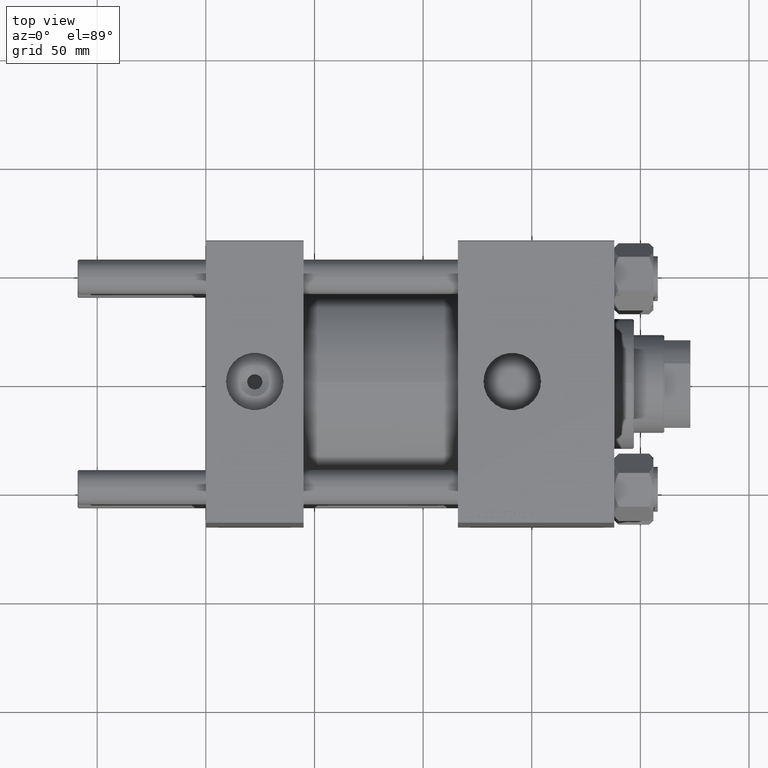
[diagram: clean part render]
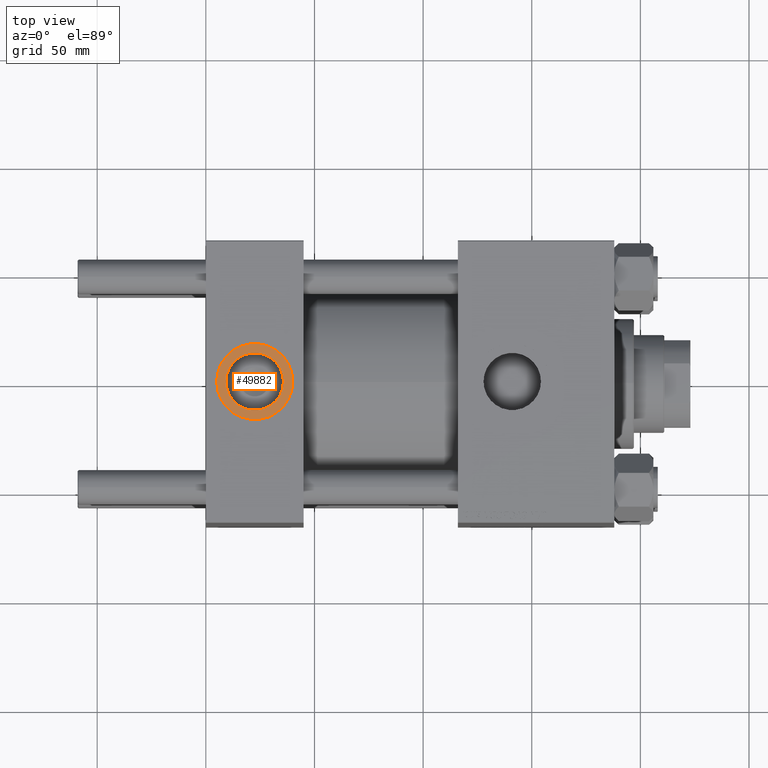
[diagram: same view with one face highlighted and labeled with its STEP entity id]
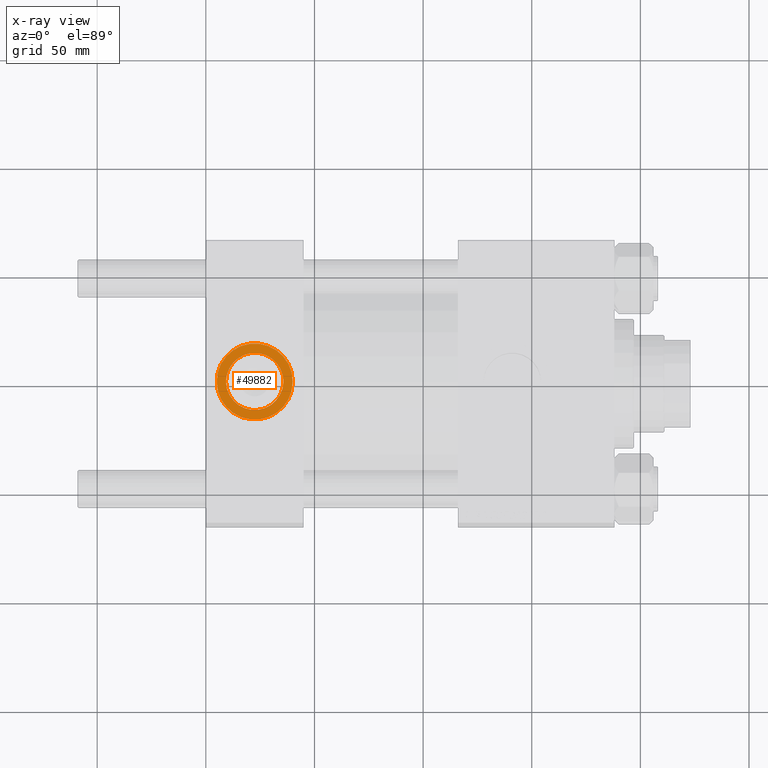
[diagram: x-ray of the same camera — body ghosted, the highlighted face saturated]
A machine part, top view. The second image highlights one B-rep face of the part: STEP entity #49882.
The next image is the same camera in x-ray: the body ghosted, the highlighted face saturated — about 0% of this face is hidden behind the body in this view.
In plain terms, the highlighted planar face has unit normal (0, 0, 1).
Its self-contained STEP definition (entity closure, byte-faithful):
#384 = ORIENTED_EDGE ( 'NONE', *, *, #9387, .F. ) ;
#1418 = CARTESIAN_POINT ( 'NONE',  ( 40.00000000000000000, -8.673617379884035472E-15, 64.79999999999999716 ) ) ;
#2457 = DIRECTION ( 'NONE',  ( 0.000000000000000000, 0.000000000000000000, 1.000000000000000000 ) ) ;
#8157 = DIRECTION ( 'NONE',  ( 0.000000000000000000, 0.000000000000000000, 1.000000000000000000 ) ) ;
#8761 = DIRECTION ( 'NONE',  ( 1.000000000000000000, 0.000000000000000000, 0.000000000000000000 ) ) ;
#9342 = CARTESIAN_POINT ( 'NONE',  ( 22.50000000000000000, -8.673617379884035472E-15, 64.79999999999999716 ) ) ;
#9387 = EDGE_CURVE ( 'NONE', #11153, #47966, #17745, .T. ) ;
#10817 = DIRECTION ( 'NONE',  ( 0.000000000000000000, 0.000000000000000000, 1.000000000000000000 ) ) ;
#11153 = VERTEX_POINT ( 'NONE', #43918 ) ;
#11970 = FACE_OUTER_BOUND ( 'NONE', #44838, .T. ) ;
#12222 = CARTESIAN_POINT ( 'NONE',  ( 22.50000000000000000, -8.673617379884035472E-15, 64.79999999999999716 ) ) ;
#12722 = DIRECTION ( 'NONE',  ( 1.000000000000000000, 0.000000000000000000, -0.000000000000000000 ) ) ;
#13386 = VERTEX_POINT ( 'NONE', #47996 ) ;
#14635 = CARTESIAN_POINT ( 'NONE',  ( 22.50000000000000000, -8.673617379884035472E-15, 64.79999999999999716 ) ) ;
#16427 = AXIS2_PLACEMENT_3D ( 'NONE', #14635, #10817, #8761 ) ;
#16572 = VERTEX_POINT ( 'NONE', #1418 ) ;
#17745 = CIRCLE ( 'NONE', #29112, 13.22000000000000242 ) ;
#18404 = ORIENTED_EDGE ( 'NONE', *, *, #29966, .T. ) ;
#19813 = AXIS2_PLACEMENT_3D ( 'NONE', #36133, #8157, #12722 ) ;
#20635 = ORIENTED_EDGE ( 'NONE', *, *, #27708, .T. ) ;
#21044 = DIRECTION ( 'NONE',  ( 1.000000000000000000, 0.000000000000000000, 0.000000000000000000 ) ) ;
#21877 = EDGE_CURVE ( 'NONE', #47966, #11153, #47100, .T. ) ;
#23938 = DIRECTION ( 'NONE',  ( 1.000000000000000000, 0.000000000000000000, 0.000000000000000000 ) ) ;
#25151 = AXIS2_PLACEMENT_3D ( 'NONE', #12222, #30821, #23938 ) ;
#27708 = EDGE_CURVE ( 'NONE', #13386, #16572, #38370, .T. ) ;
#29112 = AXIS2_PLACEMENT_3D ( 'NONE', #29657, #49021, #41373 ) ;
#29657 = CARTESIAN_POINT ( 'NONE',  ( 22.50000000000000000, -8.673617379884035472E-15, 64.79999999999999716 ) ) ;
#29966 = EDGE_CURVE ( 'NONE', #16572, #13386, #39967, .T. ) ;
#30821 = DIRECTION ( 'NONE',  ( 0.000000000000000000, 0.000000000000000000, 1.000000000000000000 ) ) ;
#30869 = ORIENTED_EDGE ( 'NONE', *, *, #21877, .F. ) ;
#35636 = PLANE ( 'NONE',  #19813 ) ;
#36133 = CARTESIAN_POINT ( 'NONE',  ( 22.50000000000000000, -8.673617379884035472E-15, 64.79999999999999716 ) ) ;
#38338 = EDGE_LOOP ( 'NONE', ( #384, #30869 ) ) ;
#38370 = CIRCLE ( 'NONE', #16427, 17.50000000000000000 ) ;
#38992 = CARTESIAN_POINT ( 'NONE',  ( 9.279999999999994031, -7.054634311411234321E-15, 64.79999999999999716 ) ) ;
#39967 = CIRCLE ( 'NONE', #40767, 17.50000000000000000 ) ;
#40767 = AXIS2_PLACEMENT_3D ( 'NONE', #9342, #2457, #21044 ) ;
#41373 = DIRECTION ( 'NONE',  ( 1.000000000000000000, 0.000000000000000000, 0.000000000000000000 ) ) ;
#43918 = CARTESIAN_POINT ( 'NONE',  ( 35.71999999999999886, -8.673617379884035472E-15, 64.79999999999999716 ) ) ;
#44035 = FACE_BOUND ( 'NONE', #38338, .T. ) ;
#44838 = EDGE_LOOP ( 'NONE', ( #18404, #20635 ) ) ;
#47100 = CIRCLE ( 'NONE', #25151, 13.22000000000000242 ) ;
#47966 = VERTEX_POINT ( 'NONE', #38992 ) ;
#47996 = CARTESIAN_POINT ( 'NONE',  ( 4.999999999999997335, -6.530485481376167224E-15, 64.79999999999999716 ) ) ;
#49021 = DIRECTION ( 'NONE',  ( 0.000000000000000000, 0.000000000000000000, 1.000000000000000000 ) ) ;
#49882 = ADVANCED_FACE ( 'NONE', ( #44035, #11970 ), #35636, .T. ) ;